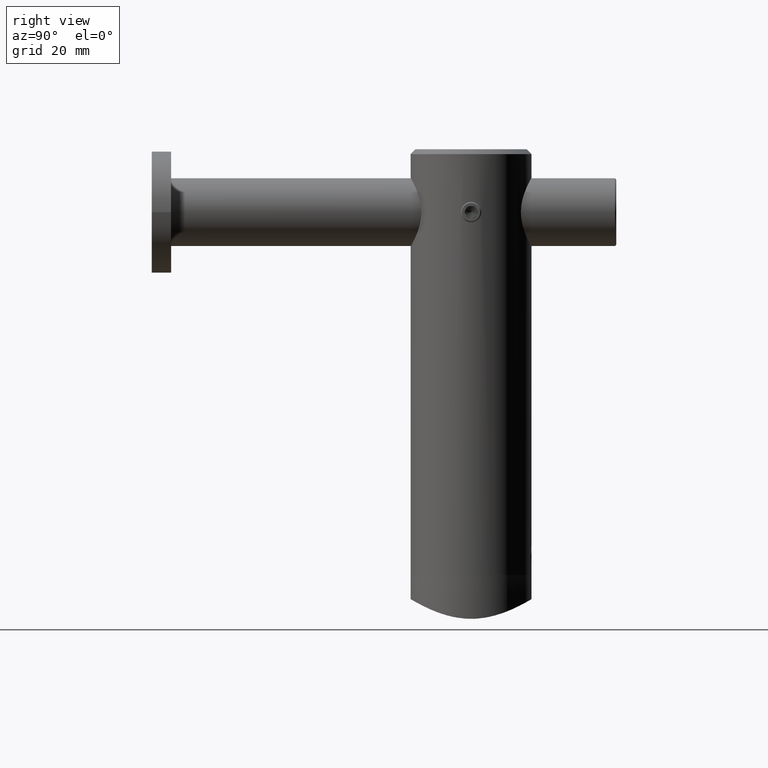
[diagram: clean part render]
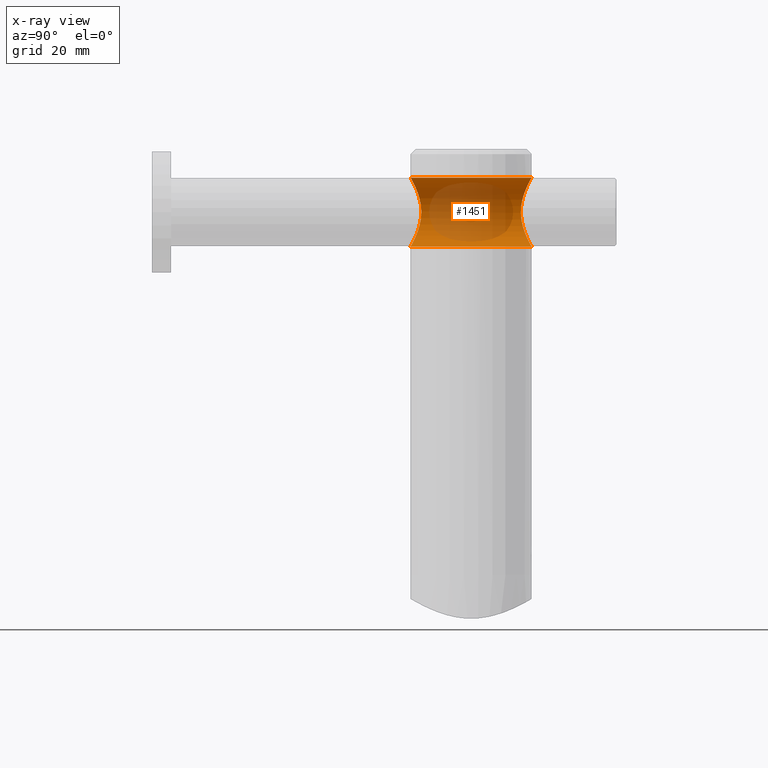
[diagram: x-ray — body ghosted, one internal face saturated and labeled with its STEP entity id]
A machine part, right view, then the same camera in x-ray: the body is ghosted and one INTERNAL B-rep face — a face not visible from any outside direction — is saturated and labeled: STEP entity #1451.
In plain terms, the highlighted cylindrical surface (edge-blend (fillet) strip) has radius 7.1 mm, axis along (0, 1, 0).
Its self-contained STEP definition (entity closure, byte-faithful):
#141 = CARTESIAN_POINT ( 'NONE',  ( -6.148078400945676592, -10.88734605281070422, 78.58038588945871084 ) ) ;
#201 = CARTESIAN_POINT ( 'NONE',  ( -5.633085906007541332, -11.16254692090160461, 70.65396086375709217 ) ) ;
#267 = CARTESIAN_POINT ( 'NONE',  ( -0.9511355239451600996, -12.47236506100288445, 67.94834280267892268 ) ) ;
#339 = CARTESIAN_POINT ( 'NONE',  ( -5.345048310374298950, -11.30501070537479791, 70.30460859623606495 ) ) ;
#443 = DIRECTION ( 'NONE',  ( -0.000000000000000000, 1.000000000000000000, -0.000000000000000000 ) ) ;
#914 = CARTESIAN_POINT ( 'NONE',  ( -7.003725121456042757, 10.35379304955138124, 73.81127548781321934 ) ) ;
#983 = CARTESIAN_POINT ( 'NONE',  ( -6.146595381488635823, 10.88816703618159565, 71.41721095202193226 ) ) ;
#1045 = CARTESIAN_POINT ( 'NONE',  ( -6.853982002503376414, 10.45369377733144312, 76.86763025503729807 ) ) ;
#1103 = LINE ( 'NONE', #5977, #12506 ) ;
#1107 = CARTESIAN_POINT ( 'NONE',  ( -7.039363743819929020, 10.32948239257338408, 74.04422229401671984 ) ) ;
#1220 = DIRECTION ( 'NONE',  ( -0.000000000000000000, 1.000000000000000000, -0.000000000000000000 ) ) ;
#1308 = CARTESIAN_POINT ( 'NONE',  ( -0.4811991486314993738, 12.49299174562365344, 82.08768211575331009 ) ) ;
#1439 = CARTESIAN_POINT ( 'NONE',  ( -5.350137245759822413, 11.30260226496380405, 79.68962492468297398 ) ) ;
#1451 = ADVANCED_FACE ( 'NONE', ( #5247 ), #3384, .F. ) ;
#1636 = CARTESIAN_POINT ( 'NONE',  ( 1.290313625304569330E-16, -12.50000000000000888, 82.09999999999999432 ) ) ;
#1826 = CARTESIAN_POINT ( 'NONE',  ( -6.355184909898128787, -10.76464359171548146, 71.82596901323131533 ) ) ;
#1890 = CARTESIAN_POINT ( 'NONE',  ( -4.356324323330959203, -11.72326304938613184, 80.62539833997443850 ) ) ;
#2424 = CARTESIAN_POINT ( 'NONE',  ( -0.4799539051028682834, 12.49999999999999822, 67.90000000000000568 ) ) ;
#2486 = CARTESIAN_POINT ( 'NONE',  ( -5.628902018887846026, 11.16205403663977691, 70.66670042335572077 ) ) ;
#2603 = CARTESIAN_POINT ( 'NONE',  ( -5.186797260141185362, 11.37442896416548521, 70.14630031359379814 ) ) ;
#2732 = CARTESIAN_POINT ( 'NONE',  ( -4.699254457469035806, 11.58459427111668205, 80.32723125532280051 ) ) ;
#3132 = CARTESIAN_POINT ( 'NONE',  ( -1.874052461373487910, -12.36744064349519334, 81.86437246242218180 ) ) ;
#3187 = EDGE_CURVE ( 'NONE', #12180, #18437, #1103, .T. ) ;
#3319 = CARTESIAN_POINT ( 'NONE',  ( -2.542285523396217606, -12.24072011514205194, 68.36667086906035706 ) ) ;
#3381 = CARTESIAN_POINT ( 'NONE',  ( -0.4809610958689493065, -12.50000000000000711, 67.89999999999999147 ) ) ;
#3384 = CYLINDRICAL_SURFACE ( 'NONE', #16653, 7.099999999999995204 ) ;
#3871 = ORIENTED_EDGE ( 'NONE', *, *, #18881, .T. ) ;
#3903 = B_SPLINE_CURVE_WITH_KNOTS ( 'NONE', 3,
 ( #1636, #6241, #12234, #3132, #15127, #7630, #13530, #1890, #16612, #7757, #6055, #16423, #18095, #141, #7572, #17903, #12296, #4616, #9053, #9246, #15005, #16489, #12051, #13707, #6185, #6125, #1826, #9121, #17974, #201, #339, #10559, #10752, #10684, #4818, #3319, #9302, #15195, #6308, #267, #3381, #10622 ),
 .UNSPECIFIED., .F., .F.,
 ( 4, 2, 2, 2, 2, 2, 2, 2, 2, 2, 2, 2, 2, 2, 2, 2, 2, 2, 2, 2, 4 ),
 ( 1.250545881557408011E-19, 0.001419307301426417974, 0.002838614602852835515, 0.004257921904279252621, 0.005677229205705669295, 0.006386882856418878499, 0.007096536507132086835, 0.008515843808558505243, 0.009935151109984921916, 0.01135445841141133859, 0.01277376571283775873, 0.01348341936355096707, 0.01419307301426417714, 0.01490272666497738548, 0.01561238031569059381, 0.01703168761711697926, 0.01845099491854336471, 0.01987030221996975016, 0.02057995587068294288, 0.02128960952139613561, 0.02270891682282252105 ),
 .UNSPECIFIED. ) ;
#3935 = EDGE_CURVE ( 'NONE', #5016, #12180, #3903, .T. ) ;
#3981 = CARTESIAN_POINT ( 'NONE',  ( -3.591928364928691053, 11.97960984808971929, 68.85822097251376306 ) ) ;
#4051 = CARTESIAN_POINT ( 'NONE',  ( -6.357972462635662403, 10.76299649604914954, 78.16845701976458827 ) ) ;
#4233 = CARTESIAN_POINT ( 'NONE',  ( 1.310074275435993587E-16, 12.49999999999999467, 82.09999999999999432 ) ) ;
#4424 = CARTESIAN_POINT ( 'NONE',  ( -4.346392963122591269, 11.72154789661119878, 80.61883026206068337 ) ) ;
#4616 = CARTESIAN_POINT ( 'NONE',  ( -7.051303418075907992, -10.32191336193628217, 75.95439068768591540 ) ) ;
#4818 = CARTESIAN_POINT ( 'NONE',  ( -3.186329035902472295, -12.09508519001900240, 68.63805128578243853 ) ) ;
#5016 = VERTEX_POINT ( 'NONE', #16694 ) ;
#5247 = FACE_OUTER_BOUND ( 'NONE', #6054, .T. ) ;
#5329 = CARTESIAN_POINT ( 'NONE',  ( 1.530808498934021719E-15, -12.50000000000000711, 67.90000000000000568 ) ) ;
#5479 = CARTESIAN_POINT ( 'NONE',  ( -5.765905370694645704, 11.09166530797232397, 70.85077256676534319 ) ) ;
#5606 = CARTESIAN_POINT ( 'NONE',  ( -5.637531711305973303, 11.16027666235574323, 79.34016184945231487 ) ) ;
#5866 = CARTESIAN_POINT ( 'NONE',  ( -3.195008394635605598, 12.09282248704221097, 81.35766473062257376 ) ) ;
#5933 = CARTESIAN_POINT ( 'NONE',  ( -0.2397798003476031004, 12.50000000000000000, 82.10000000000002274 ) ) ;
#5977 = CARTESIAN_POINT ( 'NONE',  ( 8.694992273946205774E-16, -12.50000000000000888, 67.90000000000000568 ) ) ;
#5994 = CARTESIAN_POINT ( 'NONE',  ( -0.9553685758214900403, 12.46569958972207814, 82.03946455910859470 ) ) ;
#6054 = EDGE_LOOP ( 'NONE', ( #16263, #10284, #3871, #12185 ) ) ;
#6055 = CARTESIAN_POINT ( 'NONE',  ( -5.339918604441927563, -11.30314907400740942, 79.68477827955356929 ) ) ;
#6125 = CARTESIAN_POINT ( 'NONE',  ( -6.454712516760552354, -10.70503448327142237, 72.03349485711554223 ) ) ;
#6185 = CARTESIAN_POINT ( 'NONE',  ( -6.634052515645173287, -10.59483006856256537, 72.45976110248518864 ) ) ;
#6241 = CARTESIAN_POINT ( 'NONE',  ( -0.4805659640073332572, -12.50000000000001066, 82.09999999999999432 ) ) ;
#6308 = CARTESIAN_POINT ( 'NONE',  ( -1.641484044854728097, -12.39391654726005321, 68.08836762162168554 ) ) ;
#6613 = CARTESIAN_POINT ( 'NONE',  ( 1.310074275435993587E-16, 12.49999999999999467, 82.09999999999999432 ) ) ;
#6898 = VERTEX_POINT ( 'NONE', #6613 ) ;
#6904 = CARTESIAN_POINT ( 'NONE',  ( -6.721338987096790341, 10.54124068422388660, 72.66633231102328239 ) ) ;
#6966 = CARTESIAN_POINT ( 'NONE',  ( -7.100327846217661332, 10.28763066194222553, 75.47389198161975798 ) ) ;
#7162 = CARTESIAN_POINT ( 'NONE',  ( -4.707102817139632300, 11.58512768093194367, 69.66537265374722665 ) ) ;
#7572 = CARTESIAN_POINT ( 'NONE',  ( -6.364631587517303402, -10.76036465851576907, 78.18015725607450861 ) ) ;
#7630 = CARTESIAN_POINT ( 'NONE',  ( -3.187496164584713743, -12.09474588327909572, 81.36129952231799223 ) ) ;
#7757 = CARTESIAN_POINT ( 'NONE',  ( -5.187679897919512229, -11.37402628047062514, 79.85275722496859885 ) ) ;
#8334 = CARTESIAN_POINT ( 'NONE',  ( -6.363243337331820904, 10.76119357562656376, 71.81699247692640142 ) ) ;
#8529 = CARTESIAN_POINT ( 'NONE',  ( -6.715641276056542708, 10.54309940824726688, 77.31630617827102014 ) ) ;
#8788 = CARTESIAN_POINT ( 'NONE',  ( -2.549971958430652386, 12.23912789366316645, 81.63039500168852669 ) ) ;
#8849 = CARTESIAN_POINT ( 'NONE',  ( -4.163804789402314910, 11.78780696279484275, 80.75540257205885553 ) ) ;
#9053 = CARTESIAN_POINT ( 'NONE',  ( -7.099863319915299620, -10.28795124725936816, 75.48272081303903747 ) ) ;
#9121 = CARTESIAN_POINT ( 'NONE',  ( -6.136548808116675247, -10.89076193942645965, 71.42150636865642355 ) ) ;
#9246 = CARTESIAN_POINT ( 'NONE',  ( -7.100136108486188924, -10.28776298659892596, 74.52130825598261765 ) ) ;
#9302 = CARTESIAN_POINT ( 'NONE',  ( -2.319323625872138361, -12.28506725716603754, 68.28537096905358794 ) ) ;
#9913 = CARTESIAN_POINT ( 'NONE',  ( -5.339170464550233142, 11.30350596078846870, 70.31435362947014767 ) ) ;
#9973 = CARTESIAN_POINT ( 'NONE',  ( -6.862816372559787936, 10.44818337300496047, 73.12045813888649093 ) ) ;
#10284 = ORIENTED_EDGE ( 'NONE', *, *, #3187, .T. ) ;
#10559 = CARTESIAN_POINT ( 'NONE',  ( -4.703273353215213781, -11.58671775153815986, 69.66188594729268857 ) ) ;
#10622 = CARTESIAN_POINT ( 'NONE',  ( 1.530808498934021719E-15, -12.50000000000000711, 67.90000000000000568 ) ) ;
#10684 = CARTESIAN_POINT ( 'NONE',  ( -3.589032839019618670, -11.98032867455220796, 68.85692947369597050 ) ) ;
#10752 = CARTESIAN_POINT ( 'NONE',  ( -4.346314444032338464, -11.72684879340800812, 69.36723664936094735 ) ) ;
#11466 = CARTESIAN_POINT ( 'NONE',  ( -6.636142668883750595, 10.59351820108907916, 77.53475660832805261 ) ) ;
#11625 = VECTOR ( 'NONE', #443, 1000.000000000000000 ) ;
#11702 = CARTESIAN_POINT ( 'NONE',  ( 0.000000000000000000, -12.50000000000000888, 75.00000000000000000 ) ) ;
#11920 = CARTESIAN_POINT ( 'NONE',  ( -2.327268730588588852, 12.28355408712934960, 81.71186112651896849 ) ) ;
#12051 = CARTESIAN_POINT ( 'NONE',  ( -6.852873825890776871, -10.45442333798883183, 73.12823189057863260 ) ) ;
#12180 = VERTEX_POINT ( 'NONE', #5329 ) ;
#12185 = ORIENTED_EDGE ( 'NONE', *, *, #17611, .F. ) ;
#12234 = CARTESIAN_POINT ( 'NONE',  ( -0.9512168273055808809, -12.47240342699864257, 82.05172804908774253 ) ) ;
#12296 = CARTESIAN_POINT ( 'NONE',  ( -6.863499158220037089, -10.44773442666880925, 76.87726417523569467 ) ) ;
#12506 = VECTOR ( 'NONE', #13506, 1000.000000000000000 ) ;
#12898 = CARTESIAN_POINT ( 'NONE',  ( -3.187016512190915307, 12.09486426576824591, 68.63847765149670010 ) ) ;
#12939 = DIRECTION ( 'NONE',  ( 0.000000000000000000, 0.000000000000000000, 1.000000000000000000 ) ) ;
#12959 = CARTESIAN_POINT ( 'NONE',  ( -6.457309689604062264, 10.70346527864367481, 77.96083301754556771 ) ) ;
#13015 = CARTESIAN_POINT ( 'NONE',  ( -1.874312031601152784, 12.36740688548126954, 68.13568800573901285 ) ) ;
#13152 = CARTESIAN_POINT ( 'NONE',  ( -1.189197617727922651, 12.44547036346077462, 82.00366006475732661 ) ) ;
#13404 = CARTESIAN_POINT ( 'NONE',  ( -3.597349250370595719, 11.97780161950913325, 81.13814261268854011 ) ) ;
#13506 = DIRECTION ( 'NONE',  ( -0.000000000000000000, 1.000000000000000000, -0.000000000000000000 ) ) ;
#13530 = CARTESIAN_POINT ( 'NONE',  ( -3.592029824636711055, -11.97955674781281488, 81.14166018535316027 ) ) ;
#13707 = CARTESIAN_POINT ( 'NONE',  ( -6.713868405384194382, -10.54423150536104181, 72.67849907081439653 ) ) ;
#14419 = CARTESIAN_POINT ( 'NONE',  ( -6.139503581357961259, 10.88909560909868901, 78.57343385222416998 ) ) ;
#14487 = CARTESIAN_POINT ( 'NONE',  ( -7.052734923715453519, 10.32092856185195195, 75.94404489671643432 ) ) ;
#14547 = CARTESIAN_POINT ( 'NONE',  ( 1.479114197289397135E-28, 12.49999999999999645, 67.90000000000000568 ) ) ;
#14742 = CARTESIAN_POINT ( 'NONE',  ( -1.878213508060260439, 12.36018587133492552, 81.85110017035161434 ) ) ;
#14804 = CARTESIAN_POINT ( 'NONE',  ( -1.650620416519912759, 12.39271462522872191, 81.90947881661521990 ) ) ;
#14867 = CARTESIAN_POINT ( 'NONE',  ( -4.868944799639089993, 11.51408151635097887, 80.17252493070223807 ) ) ;
#15005 = CARTESIAN_POINT ( 'NONE',  ( -7.051980222211305716, -10.32144769786894756, 74.05050001367733614 ) ) ;
#15127 = CARTESIAN_POINT ( 'NONE',  ( -2.330508779459667501, -12.28868335539655376, 81.72272208563961726 ) ) ;
#15195 = CARTESIAN_POINT ( 'NONE',  ( -1.869096526884923559, -12.36157828789707835, 68.14638903365944600 ) ) ;
#15729 = CARTESIAN_POINT ( 'NONE',  ( 1.479114197289397135E-28, 12.49999999999999645, 67.90000000000000568 ) ) ;
#15769 = LINE ( 'NONE', #18348, #11625 ) ;
#15846 = CARTESIAN_POINT ( 'NONE',  ( -7.099833554373474520, 10.28797178943786861, 74.75572396004346842 ) ) ;
#15913 = CARTESIAN_POINT ( 'NONE',  ( -7.087426699821466336, 10.29656404782429746, 74.51571112368853278 ) ) ;
#16263 = ORIENTED_EDGE ( 'NONE', *, *, #3935, .T. ) ;
#16423 = CARTESIAN_POINT ( 'NONE',  ( -5.629205280336354811, -11.16189758074911786, 79.33288889108357012 ) ) ;
#16489 = CARTESIAN_POINT ( 'NONE',  ( -6.911509236011332824, -10.41557569167955855, 73.35788736678888711 ) ) ;
#16612 = CARTESIAN_POINT ( 'NONE',  ( -4.708029709747248326, -11.58475042720365344, 80.33381269667304991 ) ) ;
#16653 = AXIS2_PLACEMENT_3D ( 'NONE', #11702, #1220, #12939 ) ;
#16694 = CARTESIAN_POINT ( 'NONE',  ( 1.290313625304569330E-16, -12.50000000000000888, 82.09999999999999432 ) ) ;
#17329 = CARTESIAN_POINT ( 'NONE',  ( -6.912668111617620070, 10.41480574227798783, 76.63725143042475452 ) ) ;
#17388 = CARTESIAN_POINT ( 'NONE',  ( -0.9511822130778539996, 12.47241159761730600, 67.94825715557604440 ) ) ;
#17611 = EDGE_CURVE ( 'NONE', #5016, #6898, #15769, .T. ) ;
#17903 = CARTESIAN_POINT ( 'NONE',  ( -6.722015453373487937, -10.54080125387374345, 77.33161824979872279 ) ) ;
#17974 = CARTESIAN_POINT ( 'NONE',  ( -6.016811922509472055, -10.95760019053422774, 71.22370518382081173 ) ) ;
#18095 = CARTESIAN_POINT ( 'NONE',  ( -5.766588826831744896, -11.09131400361185094, 79.14830821994482335 ) ) ;
#18348 = CARTESIAN_POINT ( 'NONE',  ( 0.000000000000000000, -12.50000000000000888, 82.09999999999999432 ) ) ;
#18437 = VERTEX_POINT ( 'NONE', #15729 ) ;
#18767 = CARTESIAN_POINT ( 'NONE',  ( -2.330455522349846653, 12.28868556496928122, 68.27727600612421099 ) ) ;
#18836 = CARTESIAN_POINT ( 'NONE',  ( -4.357488413051599174, 11.72285358696203161, 69.37543835206956544 ) ) ;
#18881 = EDGE_CURVE ( 'NONE', #18437, #6898, #19180, .T. ) ;
#18903 = CARTESIAN_POINT ( 'NONE',  ( -6.019886174600849849, 10.95590503741819077, 78.77136084374127734 ) ) ;
#19180 = B_SPLINE_CURVE_WITH_KNOTS ( 'NONE', 3,
 ( #14547, #2424, #17388, #13015, #18767, #12898, #3981, #18836, #7162, #2603, #9913, #2486, #5479, #983, #8334, #6904, #9973, #914, #1107, #15913, #15846, #6966, #14487, #17329, #1045, #8529, #11466, #12959, #4051, #14419, #18903, #5606, #1439, #14867, #2732, #4424, #8849, #13404, #5866, #8788, #11920, #14742, #14804, #13152, #5994, #1308, #5933, #4233 ),
 .UNSPECIFIED., .F., .F.,
 ( 4, 2, 2, 2, 2, 2, 2, 2, 2, 2, 2, 2, 2, 2, 2, 2, 2, 2, 2, 2, 2, 2, 2, 4 ),
 ( 0.02270891682282252799, 0.02412525192292018852, 0.02554158702301784559, 0.02695792212311550612, 0.02837425722321316318, 0.02908242477326199171, 0.02979059232331082024, 0.03120692742340847731, 0.03262326252350612743, 0.03333143007355495596, 0.03403959762360378449, 0.03545593272370139992, 0.03616410027375020764, 0.03687226782379901535, 0.03758043537384781613, 0.03828860292389662384, 0.03970493802399420458, 0.04041310557404299841, 0.04112127312409179225, 0.04253760822418940074, 0.04324577577423820152, 0.04395394332428700923, 0.04466211087433581695, 0.04537027842438461772 ),
 .UNSPECIFIED. ) ;